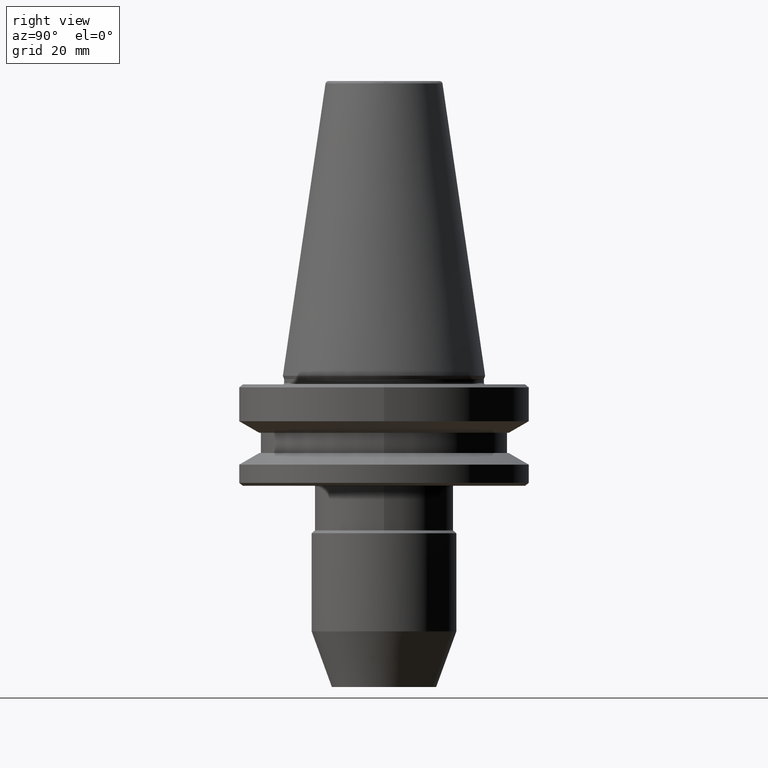
[diagram: clean part render]
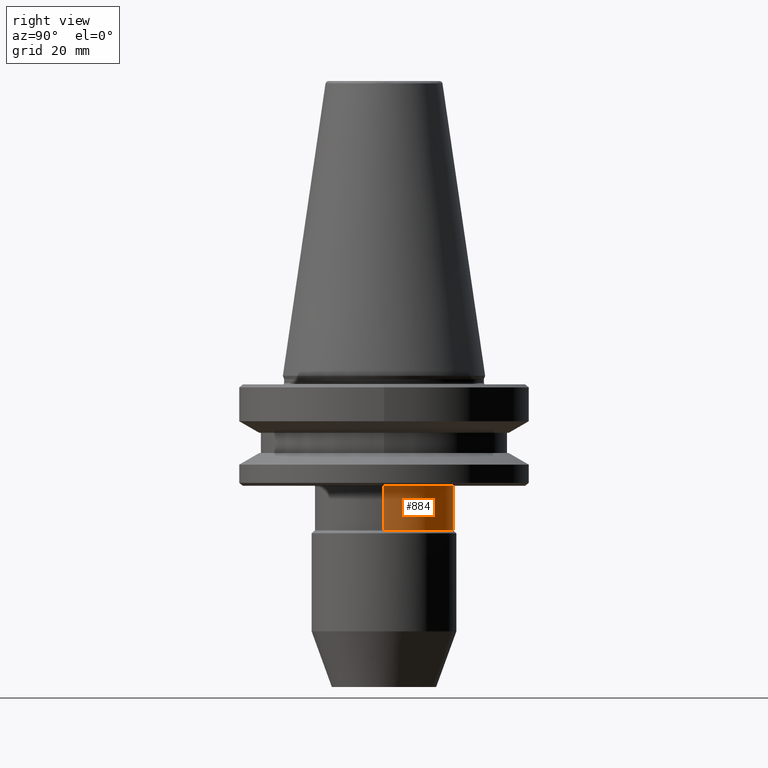
[diagram: same view with one face highlighted and labeled with its STEP entity id]
A machine part, right view. The second image highlights one B-rep face of the part: STEP entity #884.
In plain terms, the highlighted cylindrical surface (partial cylindrical patch) has radius 24 mm, axis along (0, 0, 1).
Its self-contained STEP definition (entity closure, byte-faithful):
#76 = CARTESIAN_POINT ( 'NONE',  ( -24.00000000000000000, 2.939152317953647900E-015, -38.00000000000000000 ) ) ;
#181 = VECTOR ( 'NONE', #1217, 1000.000000000000000 ) ;
#200 = CARTESIAN_POINT ( 'NONE',  ( 24.00000000000000000, 0.0000000000000000000, -38.00000000000000000 ) ) ;
#209 = DIRECTION ( 'NONE',  ( 0.0000000000000000000, 0.0000000000000000000, 1.000000000000000000 ) ) ;
#211 = CARTESIAN_POINT ( 'NONE',  ( 24.00000000000000000, 0.0000000000000000000, -53.40000000000001300 ) ) ;
#310 = VERTEX_POINT ( 'NONE', #771 ) ;
#371 = EDGE_CURVE ( 'NONE', #310, #1316, #1287, .T. ) ;
#416 = AXIS2_PLACEMENT_3D ( 'NONE', #490, #488, #487 ) ;
#431 = EDGE_CURVE ( 'NONE', #1316, #1245, #845, .T. ) ;
#458 = DIRECTION ( 'NONE',  ( 1.000000000000000000, 0.0000000000000000000, 0.0000000000000000000 ) ) ;
#462 = DIRECTION ( 'NONE',  ( 0.0000000000000000000, 0.0000000000000000000, 1.000000000000000000 ) ) ;
#485 = CARTESIAN_POINT ( 'NONE',  ( 0.0000000000000000000, 0.0000000000000000000, -53.40000000000001300 ) ) ;
#487 = DIRECTION ( 'NONE',  ( 1.000000000000000000, 0.0000000000000000000, 0.0000000000000000000 ) ) ;
#488 = DIRECTION ( 'NONE',  ( 0.0000000000000000000, 0.0000000000000000000, 1.000000000000000000 ) ) ;
#490 = CARTESIAN_POINT ( 'NONE',  ( 0.0000000000000000000, 0.0000000000000000000, -53.40000000000001300 ) ) ;
#497 = VERTEX_POINT ( 'NONE', #1440 ) ;
#566 = ORIENTED_EDGE ( 'NONE', *, *, #431, .T. ) ;
#618 = AXIS2_PLACEMENT_3D ( 'NONE', #1212, #972, #1090 ) ;
#732 = CIRCLE ( 'NONE', #416, 24.00000000000000000 ) ;
#771 = CARTESIAN_POINT ( 'NONE',  ( -24.00000000000000000, 0.0000000000000000000, -53.40000000000001300 ) ) ;
#828 = EDGE_CURVE ( 'NONE', #497, #310, #732, .T. ) ;
#845 = CIRCLE ( 'NONE', #618, 24.00000000000000000 ) ;
#884 = ADVANCED_FACE ( 'NONE', ( #1183 ), #932, .T. ) ;
#932 = CYLINDRICAL_SURFACE ( 'NONE', #1082, 24.00000000000000000 ) ;
#964 = ORIENTED_EDGE ( 'NONE', *, *, #1231, .F. ) ;
#972 = DIRECTION ( 'NONE',  ( -0.0000000000000000000, -0.0000000000000000000, -1.000000000000000000 ) ) ;
#1062 = ORIENTED_EDGE ( 'NONE', *, *, #371, .T. ) ;
#1082 = AXIS2_PLACEMENT_3D ( 'NONE', #485, #462, #458 ) ;
#1090 = DIRECTION ( 'NONE',  ( 1.000000000000000000, 0.0000000000000000000, 0.0000000000000000000 ) ) ;
#1170 = LINE ( 'NONE', #211, #1473 ) ;
#1183 = FACE_OUTER_BOUND ( 'NONE', #1383, .T. ) ;
#1212 = CARTESIAN_POINT ( 'NONE',  ( 0.0000000000000000000, 0.0000000000000000000, -38.00000000000000000 ) ) ;
#1217 = DIRECTION ( 'NONE',  ( 0.0000000000000000000, 0.0000000000000000000, 1.000000000000000000 ) ) ;
#1231 = EDGE_CURVE ( 'NONE', #497, #1245, #1170, .T. ) ;
#1245 = VERTEX_POINT ( 'NONE', #200 ) ;
#1287 = LINE ( 'NONE', #1484, #181 ) ;
#1316 = VERTEX_POINT ( 'NONE', #76 ) ;
#1336 = ORIENTED_EDGE ( 'NONE', *, *, #828, .T. ) ;
#1383 = EDGE_LOOP ( 'NONE', ( #1336, #1062, #566, #964 ) ) ;
#1440 = CARTESIAN_POINT ( 'NONE',  ( 24.00000000000000000, 3.000384657911015500E-015, -53.40000000000001300 ) ) ;
#1473 = VECTOR ( 'NONE', #209, 1000.000000000000000 ) ;
#1484 = CARTESIAN_POINT ( 'NONE',  ( -24.00000000000000000, 2.939152317953647900E-015, -53.40000000000001300 ) ) ;